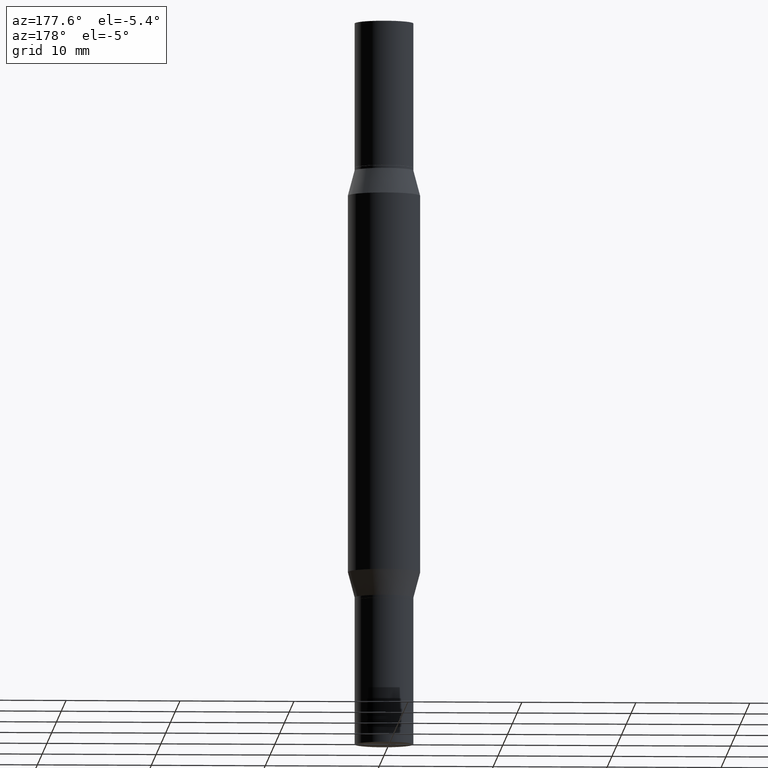
[diagram: clean part render]
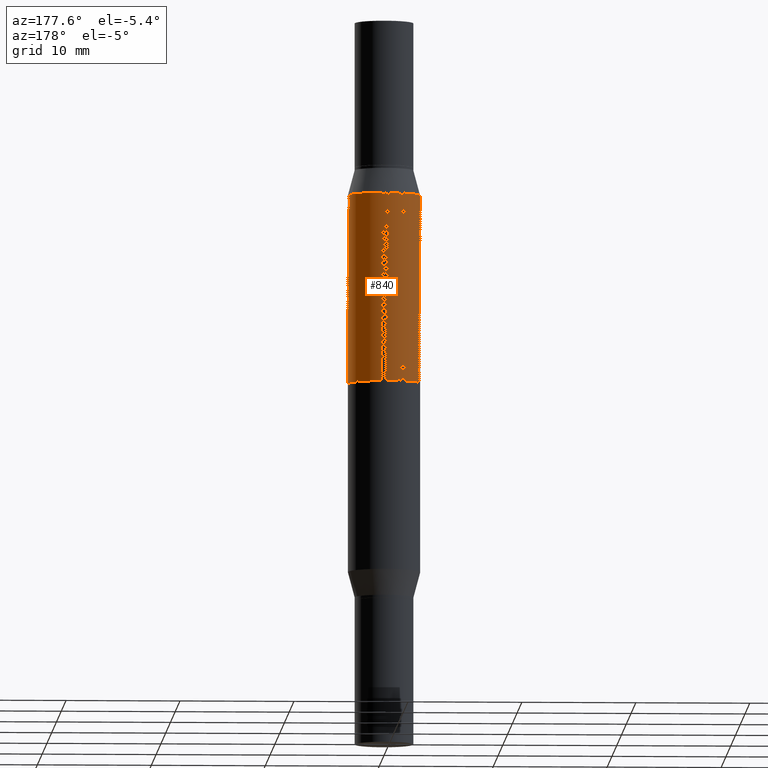
[diagram: same view with one face highlighted and labeled with its STEP entity id]
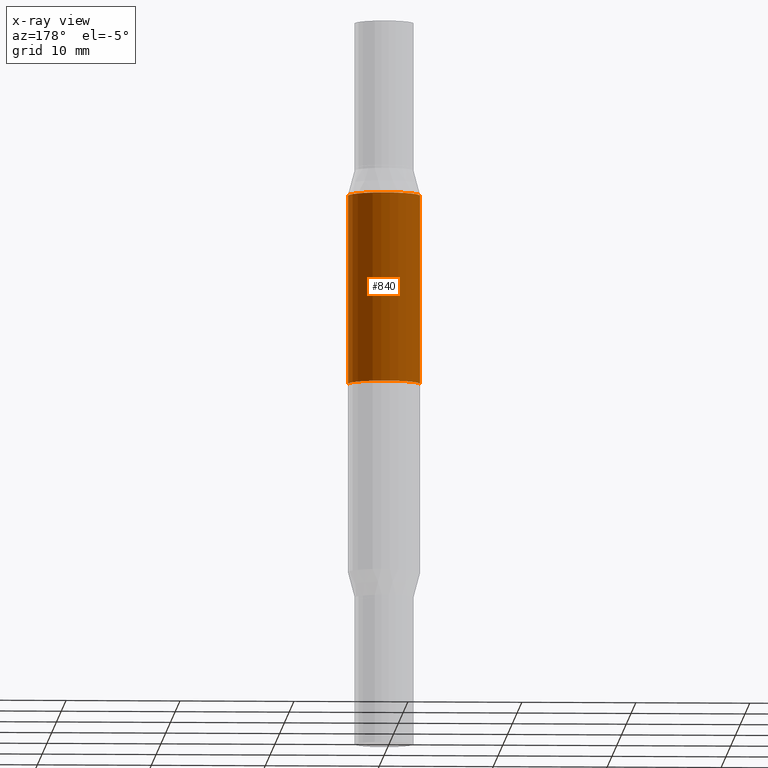
[diagram: x-ray of the same camera — body ghosted, the highlighted face saturated]
A machine part, auxiliary view. The second image highlights one B-rep face of the part: STEP entity #840.
The next image is the same camera in x-ray: the body ghosted, the highlighted face saturated — about 0% of this face is hidden behind the body in this view.
In plain terms, the highlighted cylindrical surface (edge-blend (fillet) strip) has radius 3.175 mm, axis along (-0, -0, -1).
Its self-contained STEP definition (entity closure, byte-faithful):
#41 = CARTESIAN_POINT ( 'NONE',  ( -0.1250000000000000000, -7.871545792533893657E-15, -2.499999999999999556 ) ) ;
#52 = EDGE_LOOP ( 'NONE', ( #160, #150, #457, #327 ) ) ;
#101 = CARTESIAN_POINT ( 'NONE',  ( 3.056836007731420185E-29, -4.364351673553931682E-15, -1.249999999999999778 ) ) ;
#105 = DIRECTION ( 'NONE',  ( 0.000000000000000000, 1.000000000000000000, -4.370956789862821150E-15 ) ) ;
#128 = EDGE_CURVE ( 'NONE', #710, #572, #365, .T. ) ;
#138 = DIRECTION ( 'NONE',  ( -2.445468806185136877E-29, -3.491805094961123683E-15, -1.000000000000000000 ) ) ;
#147 = AXIS2_PLACEMENT_3D ( 'NONE', #797, #892, #490 ) ;
#149 = EDGE_CURVE ( 'NONE', #423, #572, #794, .T. ) ;
#150 = ORIENTED_EDGE ( 'NONE', *, *, #516, .F. ) ;
#153 = AXIS2_PLACEMENT_3D ( 'NONE', #930, #965, #277 ) ;
#160 = ORIENTED_EDGE ( 'NONE', *, *, #262, .F. ) ;
#167 = VERTEX_POINT ( 'NONE', #337 ) ;
#242 = DIRECTION ( 'NONE',  ( -0.000000000000000000, -3.491643216902134830E-15, -1.000000000000000000 ) ) ;
#252 = LINE ( 'NONE', #41, #653 ) ;
#262 = EDGE_CURVE ( 'NONE', #167, #710, #252, .T. ) ;
#277 = DIRECTION ( 'NONE',  ( 1.000000000000000000, -6.982962677686266711E-15, 0.000000000000000000 ) ) ;
#327 = ORIENTED_EDGE ( 'NONE', *, *, #128, .F. ) ;
#337 = CARTESIAN_POINT ( 'NONE',  ( -0.1250000000000000000, -1.228444533436318603E-15, -0.5975165914374901410 ) ) ;
#365 = CIRCLE ( 'NONE', #520, 0.1250000000000000000 ) ;
#408 = FACE_OUTER_BOUND ( 'NONE', #52, .T. ) ;
#413 = DIRECTION ( 'NONE',  ( -2.445468806185136877E-29, -3.491805094961123683E-15, -1.000000000000000000 ) ) ;
#423 = VERTEX_POINT ( 'NONE', #743 ) ;
#457 = ORIENTED_EDGE ( 'NONE', *, *, #149, .T. ) ;
#490 = DIRECTION ( 'NONE',  ( 1.000000000000000000, -6.982962677686262766E-15, 0.000000000000000000 ) ) ;
#516 = EDGE_CURVE ( 'NONE', #423, #167, #826, .T. ) ;
#520 = AXIS2_PLACEMENT_3D ( 'NONE', #101, #242, #105 ) ;
#572 = VERTEX_POINT ( 'NONE', #768 ) ;
#583 = VECTOR ( 'NONE', #413, 39.37007874015748143 ) ;
#653 = VECTOR ( 'NONE', #138, 39.37007874015748143 ) ;
#710 = VERTEX_POINT ( 'NONE', #726 ) ;
#726 = CARTESIAN_POINT ( 'NONE',  ( -0.1250000000000000000, -2.367616978634402645E-15, -1.249999999999999778 ) ) ;
#743 = CARTESIAN_POINT ( 'NONE',  ( 0.1250000000000000000, -2.958877117868543782E-15, -0.5975165914374901410 ) ) ;
#768 = CARTESIAN_POINT ( 'NONE',  ( 0.1250000000000000000, -4.098049563066627035E-15, -1.249999999999999778 ) ) ;
#785 = CYLINDRICAL_SURFACE ( 'NONE', #147, 0.1250000000000000000 ) ;
#794 = LINE ( 'NONE', #951, #583 ) ;
#797 = CARTESIAN_POINT ( 'NONE',  ( 0.000000000000000000, -8.729108042255335103E-15, -2.499999999999999556 ) ) ;
#826 = CIRCLE ( 'NONE', #153, 0.1250000000000000000 ) ;
#840 = ADVANCED_FACE ( 'NONE', ( #408 ), #785, .T. ) ;
#892 = DIRECTION ( 'NONE',  ( -2.445468806185136597E-29, -3.491805094961124077E-15, -1.000000000000000000 ) ) ;
#930 = CARTESIAN_POINT ( 'NONE',  ( 4.652463829924389037E-29, -2.086006783157758077E-15, -0.5975165914374901410 ) ) ;
#951 = CARTESIAN_POINT ( 'NONE',  ( 0.1250000000000000000, -9.601978376966118441E-15, -2.499999999999999556 ) ) ;
#965 = DIRECTION ( 'NONE',  ( 2.445468806185136597E-29, 3.491805094961124077E-15, 1.000000000000000000 ) ) ;